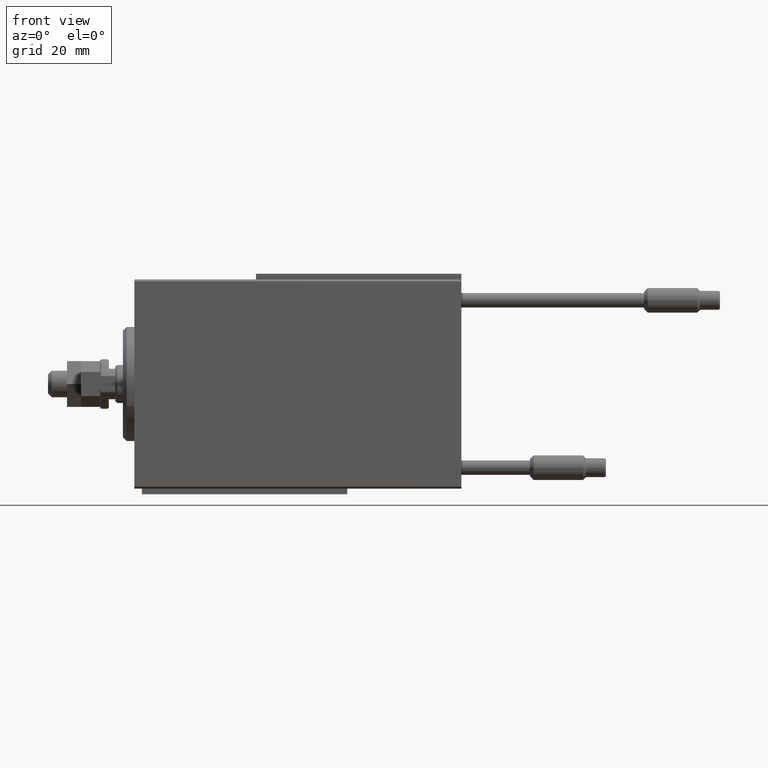
[diagram: clean part render]
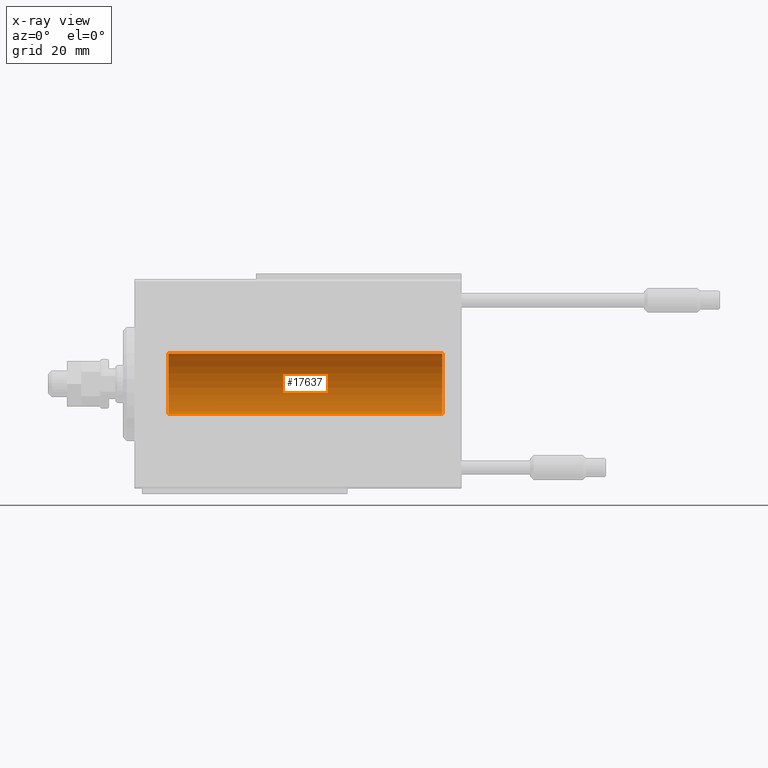
[diagram: x-ray — body ghosted, one internal face saturated and labeled with its STEP entity id]
A machine part, front view, then the same camera in x-ray: the body is ghosted and one INTERNAL B-rep face — a face not visible from any outside direction — is saturated and labeled: STEP entity #17637.
In plain terms, the highlighted cylindrical surface (edge-blend (fillet) strip) has radius 8 mm, axis along (-1, -0, -0).
Its self-contained STEP definition (entity closure, byte-faithful):
#1387 = CARTESIAN_POINT ( 'NONE',  ( 19.73146701955095494, 0.9991832710565806686, -7.938201675418735448 ) ) ;
#1647 = CARTESIAN_POINT ( 'NONE',  ( 20.66417091690312091, 1.241868426634441747, -7.903038949453011774 ) ) ;
#2583 = LINE ( 'NONE', #49721, #8963 ) ;
#3632 = LINE ( 'NONE', #10550, #14946 ) ;
#3647 = CARTESIAN_POINT ( 'NONE',  ( 74.25000000000001421, -1.007472265424530393E-14, -7.999999999999998224 ) ) ;
#3712 = CARTESIAN_POINT ( 'NONE',  ( 19.25000000000000711, -6.253246997522681077E-15, -7.999999999999998224 ) ) ;
#4140 = CIRCLE ( 'NONE', #9852, 7.999999999999998224 ) ;
#4882 = DIRECTION ( 'NONE',  ( -1.000000000000000000, -0.000000000000000000, -0.000000000000000000 ) ) ;
#5242 = CARTESIAN_POINT ( 'NONE',  ( 19.87074834296262438, 1.092266057037466487, -7.925334523600932712 ) ) ;
#5479 = CARTESIAN_POINT ( 'NONE',  ( 20.82459038316880395, 1.209888574283866758, -7.907997942808293601 ) ) ;
#5733 = CARTESIAN_POINT ( 'NONE',  ( 21.12982270639374605, 1.092113850918997153, -7.925358570881165576 ) ) ;
#6414 = CIRCLE ( 'NONE', #27608, 7.999999999999998224 ) ;
#6493 = CARTESIAN_POINT ( 'NONE',  ( 75.66417091690314578, 1.241868426634436862, -7.903038949453011774 ) ) ;
#6741 = CARTESIAN_POINT ( 'NONE',  ( 76.26739091610632215, 1.000368629246204177, -7.938072339095200824 ) ) ;
#7118 = CARTESIAN_POINT ( 'NONE',  ( 8.999999999999994671, 9.797174393178823685E-16, -7.999999999999998224 ) ) ;
#7337 = B_SPLINE_CURVE_WITH_KNOTS ( 'NONE', 3,
 ( #24463, #20862, #16752, #40333, #48020, #1387, #5242, #25204, #28065, #20615, #1647, #5479, #36259, #5733, #28806, #16265, #17256, #24707, #36504, #44430, #39832, #44181 ),
 .UNSPECIFIED., .F., .F.,
 ( 4, 2, 2, 2, 2, 2, 2, 2, 2, 2, 4 ),
 ( 4.384776375612755932E-19, 0.0004892585179631271522, 0.0009785170359262538708, 0.001467775553889380698, 0.001957034071852507308, 0.002201663330834065842, 0.002446292589815623510, 0.002935551107778730170, 0.003424809625741835964, 0.003669438884723391463, 0.003914068143704946962 ),
 .UNSPECIFIED. ) ;
#7580 = DIRECTION ( 'NONE',  ( -1.000000000000000000, 0.000000000000000000, 0.000000000000000000 ) ) ;
#8475 = CARTESIAN_POINT ( 'NONE',  ( 81.00000000000000000, 0.000000000000000000, 0.000000000000000000 ) ) ;
#8589 = CARTESIAN_POINT ( 'NONE',  ( 21.75000000000000355, 9.797173987965608855E-16, -7.999999999999998224 ) ) ;
#8963 = VECTOR ( 'NONE', #38204, 1000.000000000000000 ) ;
#9675 = ORIENTED_EDGE ( 'NONE', *, *, #27160, .F. ) ;
#9852 = AXIS2_PLACEMENT_3D ( 'NONE', #27915, #50446, #47382 ) ;
#10550 = CARTESIAN_POINT ( 'NONE',  ( 81.00000000000000000, 9.797174393178823685E-16, -7.999999999999998224 ) ) ;
#10565 = CARTESIAN_POINT ( 'NONE',  ( 76.74181525892406341, 0.1645871186493908234, -7.998709545350108918 ) ) ;
#11058 = CARTESIAN_POINT ( 'NONE',  ( 76.59204967621045057, 0.6298709050361919193, -7.976604806854521001 ) ) ;
#11300 = EDGE_LOOP ( 'NONE', ( #16869, #15158, #32159, #16781, #9675, #46432, #18524, #17169 ) ) ;
#13112 = CARTESIAN_POINT ( 'NONE',  ( 74.25000000000001421, -1.007472265424530393E-14, -7.999999999999998224 ) ) ;
#13267 = B_SPLINE_CURVE_WITH_KNOTS ( 'NONE', 3,
 ( #3647, #46436, #41831, #14927, #49527, #45430, #18527, #34174, #33666, #18788, #6493, #50282, #25966, #30323, #6741, #41581, #11058, #22378, #14414, #10565, #45937, #49781 ),
 .UNSPECIFIED., .F., .F.,
 ( 4, 2, 2, 2, 2, 2, 2, 2, 2, 2, 4 ),
 ( 3.241390096745476763E-19, 0.0004892585179631255259, 0.0009785170359262506182, 0.001467775553889376144, 0.001957034071852501670, 0.002201663330834043291, 0.002446292589815584912, 0.002935551107778707185, 0.003424809625741829459, 0.003669438884723391029, 0.003914068143704951298 ),
 .UNSPECIFIED. ) ;
#13617 = VERTEX_POINT ( 'NONE', #13112 ) ;
#14414 = CARTESIAN_POINT ( 'NONE',  ( 76.70976650520090345, 0.3250523954932707515, -7.993796610540219838 ) ) ;
#14927 = CARTESIAN_POINT ( 'NONE',  ( 74.40826977845303247, 0.6304521543648567983, -7.976560245937302618 ) ) ;
#14946 = VECTOR ( 'NONE', #26461, 1000.000000000000000 ) ;
#15083 = VERTEX_POINT ( 'NONE', #37602 ) ;
#15158 = ORIENTED_EDGE ( 'NONE', *, *, #21744, .F. ) ;
#16265 = CARTESIAN_POINT ( 'NONE',  ( 21.50031982237068107, 0.7674545364220053401, -7.963965305651049320 ) ) ;
#16581 = CARTESIAN_POINT ( 'NONE',  ( 76.75000000000001421, 9.797173987969553159E-16, -7.999999999999998224 ) ) ;
#16752 = CARTESIAN_POINT ( 'NONE',  ( 19.28266791658456825, 0.3277916934117463543, -7.994719249713585718 ) ) ;
#16781 = ORIENTED_EDGE ( 'NONE', *, *, #36313, .T. ) ;
#16869 = ORIENTED_EDGE ( 'NONE', *, *, #40916, .F. ) ;
#17169 = ORIENTED_EDGE ( 'NONE', *, *, #33181, .T. ) ;
#17256 = CARTESIAN_POINT ( 'NONE',  ( 21.59204967621043991, 0.6298709050361920303, -7.976604806854521001 ) ) ;
#17637 = ADVANCED_FACE ( 'NONE', ( #39476 ), #44063, .F. ) ;
#18524 = ORIENTED_EDGE ( 'NONE', *, *, #18668, .F. ) ;
#18527 = CARTESIAN_POINT ( 'NONE',  ( 74.87074834296262793, 1.092266057037465377, -7.925334523600930936 ) ) ;
#18668 = EDGE_CURVE ( 'NONE', #13617, #36499, #23225, .T. ) ;
#18788 = CARTESIAN_POINT ( 'NONE',  ( 75.58119849493556330, 1.250030652953397992, -7.901735465557269578 ) ) ;
#20615 = CARTESIAN_POINT ( 'NONE',  ( 20.58119849493555620, 1.250030652953401988, -7.901735465557267801 ) ) ;
#20862 = CARTESIAN_POINT ( 'NONE',  ( 19.25000000000000711, 0.1654536524217966875, -8.000000000000000000 ) ) ;
#21744 = EDGE_CURVE ( 'NONE', #15083, #39742, #4140, .T. ) ;
#21988 = AXIS2_PLACEMENT_3D ( 'NONE', #8475, #4882, #24103 ) ;
#22378 = CARTESIAN_POINT ( 'NONE',  ( 76.68608944587721510, 0.4029817482954567986, -7.990203133273721114 ) ) ;
#23225 = LINE ( 'NONE', #31947, #38411 ) ;
#24103 = DIRECTION ( 'NONE',  ( 0.000000000000000000, 0.000000000000000000, 1.000000000000000000 ) ) ;
#24463 = CARTESIAN_POINT ( 'NONE',  ( 19.25000000000000711, -6.253246997522681077E-15, -7.999999999999998224 ) ) ;
#24707 = CARTESIAN_POINT ( 'NONE',  ( 21.68608944587722576, 0.4029817482954558550, -7.990203133273719338 ) ) ;
#25204 = CARTESIAN_POINT ( 'NONE',  ( 20.17150130922778573, 1.217000984963200860, -7.907141142849008375 ) ) ;
#25966 = CARTESIAN_POINT ( 'NONE',  ( 75.90257413385909047, 1.186236229830381239, -7.911627449023369785 ) ) ;
#26461 = DIRECTION ( 'NONE',  ( -1.000000000000000000, -0.000000000000000000, -0.000000000000000000 ) ) ;
#27060 = CARTESIAN_POINT ( 'NONE',  ( 8.999999999999994671, 0.000000000000000000, 0.000000000000000000 ) ) ;
#27071 = DIRECTION ( 'NONE',  ( -1.000000000000000000, -0.000000000000000000, -0.000000000000000000 ) ) ;
#27160 = EDGE_CURVE ( 'NONE', #32831, #41052, #3632, .T. ) ;
#27608 = AXIS2_PLACEMENT_3D ( 'NONE', #27060, #7580, #34255 ) ;
#27915 = CARTESIAN_POINT ( 'NONE',  ( 81.00000000000000000, 0.000000000000000000, 0.000000000000000000 ) ) ;
#28065 = CARTESIAN_POINT ( 'NONE',  ( 20.33619145091235936, 1.249938428426572656, -7.901750054830717573 ) ) ;
#28181 = CARTESIAN_POINT ( 'NONE',  ( 81.00000000000000000, 9.797174393178823685E-16, -7.999999999999998224 ) ) ;
#28806 = CARTESIAN_POINT ( 'NONE',  ( 21.26739091610630084, 1.000368629246204399, -7.938072339095202601 ) ) ;
#30323 = CARTESIAN_POINT ( 'NONE',  ( 76.12982270639375315, 1.092113850918989604, -7.925358570881167353 ) ) ;
#31947 = CARTESIAN_POINT ( 'NONE',  ( 81.00000000000000000, 9.797174393178823685E-16, -7.999999999999998224 ) ) ;
#32159 = ORIENTED_EDGE ( 'NONE', *, *, #42261, .T. ) ;
#32831 = VERTEX_POINT ( 'NONE', #3712 ) ;
#33149 = CARTESIAN_POINT ( 'NONE',  ( 8.999999999999994671, 0.000000000000000000, 7.999999999999998224 ) ) ;
#33181 = EDGE_CURVE ( 'NONE', #13617, #46028, #13267, .T. ) ;
#33666 = CARTESIAN_POINT ( 'NONE',  ( 75.33619145091238067, 1.249938428426567549, -7.901750054830718462 ) ) ;
#34174 = CARTESIAN_POINT ( 'NONE',  ( 75.17150130922780704, 1.217000984963198640, -7.907141142849008375 ) ) ;
#34255 = DIRECTION ( 'NONE',  ( 0.000000000000000000, 0.000000000000000000, 1.000000000000000000 ) ) ;
#36259 = CARTESIAN_POINT ( 'NONE',  ( 20.90257413385907270, 1.186236229830388345, -7.911627449023368008 ) ) ;
#36313 = EDGE_CURVE ( 'NONE', #39440, #41052, #6414, .T. ) ;
#36499 = VERTEX_POINT ( 'NONE', #8589 ) ;
#36504 = CARTESIAN_POINT ( 'NONE',  ( 21.70976650520091411, 0.3250523954932730830, -7.993796610540221614 ) ) ;
#37602 = CARTESIAN_POINT ( 'NONE',  ( 81.00000000000000000, 0.000000000000000000, 7.999999999999998224 ) ) ;
#37936 = CARTESIAN_POINT ( 'NONE',  ( 81.00000000000000000, 9.797174393178823685E-16, -7.999999999999998224 ) ) ;
#38204 = DIRECTION ( 'NONE',  ( -1.000000000000000000, -0.000000000000000000, -0.000000000000000000 ) ) ;
#38411 = VECTOR ( 'NONE', #27071, 1000.000000000000000 ) ;
#39440 = VERTEX_POINT ( 'NONE', #33149 ) ;
#39476 = FACE_OUTER_BOUND ( 'NONE', #11300, .T. ) ;
#39742 = VERTEX_POINT ( 'NONE', #37936 ) ;
#39832 = CARTESIAN_POINT ( 'NONE',  ( 21.75000000000000000, 0.08164616652084619175, -7.999999999999998224 ) ) ;
#40333 = CARTESIAN_POINT ( 'NONE',  ( 19.40826977845302537, 0.6304521543648575754, -7.976560245937306171 ) ) ;
#40916 = EDGE_CURVE ( 'NONE', #39742, #46028, #47397, .T. ) ;
#41052 = VERTEX_POINT ( 'NONE', #7118 ) ;
#41581 = CARTESIAN_POINT ( 'NONE',  ( 76.50031982237065620, 0.7674545364220070054, -7.963965305651045767 ) ) ;
#41831 = CARTESIAN_POINT ( 'NONE',  ( 74.28266791658457180, 0.3277916934117453551, -7.994719249713585718 ) ) ;
#42261 = EDGE_CURVE ( 'NONE', #15083, #39440, #2583, .T. ) ;
#43323 = VECTOR ( 'NONE', #43794, 1000.000000000000000 ) ;
#43794 = DIRECTION ( 'NONE',  ( -1.000000000000000000, -0.000000000000000000, -0.000000000000000000 ) ) ;
#44010 = EDGE_CURVE ( 'NONE', #32831, #36499, #7337, .T. ) ;
#44063 = CYLINDRICAL_SURFACE ( 'NONE', #21988, 7.999999999999998224 ) ;
#44181 = CARTESIAN_POINT ( 'NONE',  ( 21.75000000000000355, 9.797173987965608855E-16, -7.999999999999998224 ) ) ;
#44430 = CARTESIAN_POINT ( 'NONE',  ( 21.74181525892405986, 0.1645871186493928773, -7.998709545350109806 ) ) ;
#45430 = CARTESIAN_POINT ( 'NONE',  ( 74.73146701955096205, 0.9991832710565793363, -7.938201675418737224 ) ) ;
#45937 = CARTESIAN_POINT ( 'NONE',  ( 76.75000000000000000, 0.08164616652084659421, -7.999999999999998224 ) ) ;
#46028 = VERTEX_POINT ( 'NONE', #16581 ) ;
#46432 = ORIENTED_EDGE ( 'NONE', *, *, #44010, .T. ) ;
#46436 = CARTESIAN_POINT ( 'NONE',  ( 74.25000000000002842, 0.1654536524217925242, -7.999999999999998224 ) ) ;
#47382 = DIRECTION ( 'NONE',  ( 0.000000000000000000, 0.000000000000000000, 1.000000000000000000 ) ) ;
#47397 = LINE ( 'NONE', #28181, #43323 ) ;
#48020 = CARTESIAN_POINT ( 'NONE',  ( 19.50115498801909197, 0.7689725568822818325, -7.963798983873345172 ) ) ;
#49527 = CARTESIAN_POINT ( 'NONE',  ( 74.50115498801909553, 0.7689725568822807222, -7.963798983873345172 ) ) ;
#49721 = CARTESIAN_POINT ( 'NONE',  ( 81.00000000000000000, 0.000000000000000000, 7.999999999999998224 ) ) ;
#49781 = CARTESIAN_POINT ( 'NONE',  ( 76.75000000000001421, 9.797173987969553159E-16, -7.999999999999998224 ) ) ;
#50282 = CARTESIAN_POINT ( 'NONE',  ( 75.82459038316882527, 1.209888574283861207, -7.907997942808298042 ) ) ;
#50446 = DIRECTION ( 'NONE',  ( -1.000000000000000000, 0.000000000000000000, 0.000000000000000000 ) ) ;